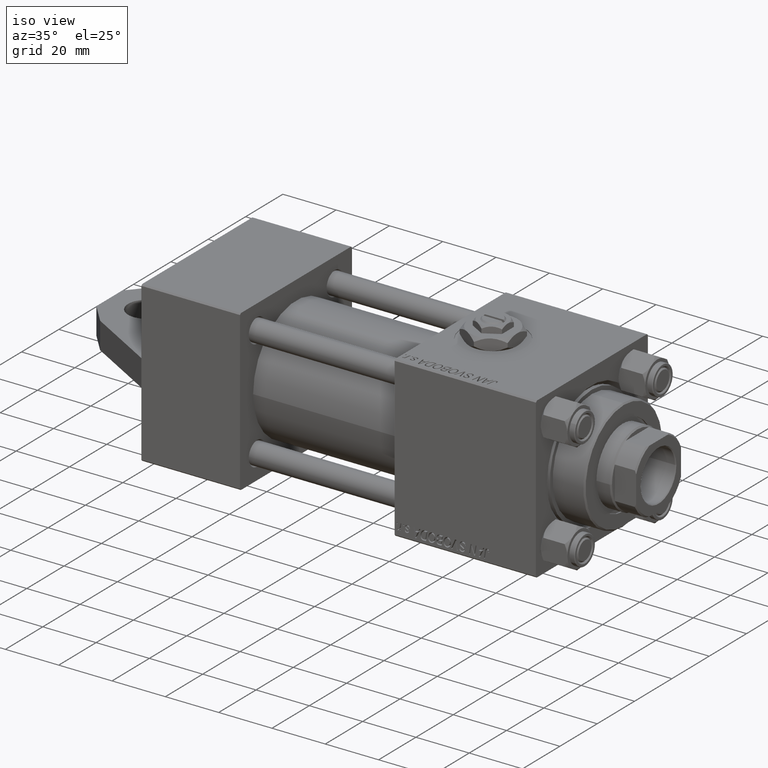
[diagram: clean part render]
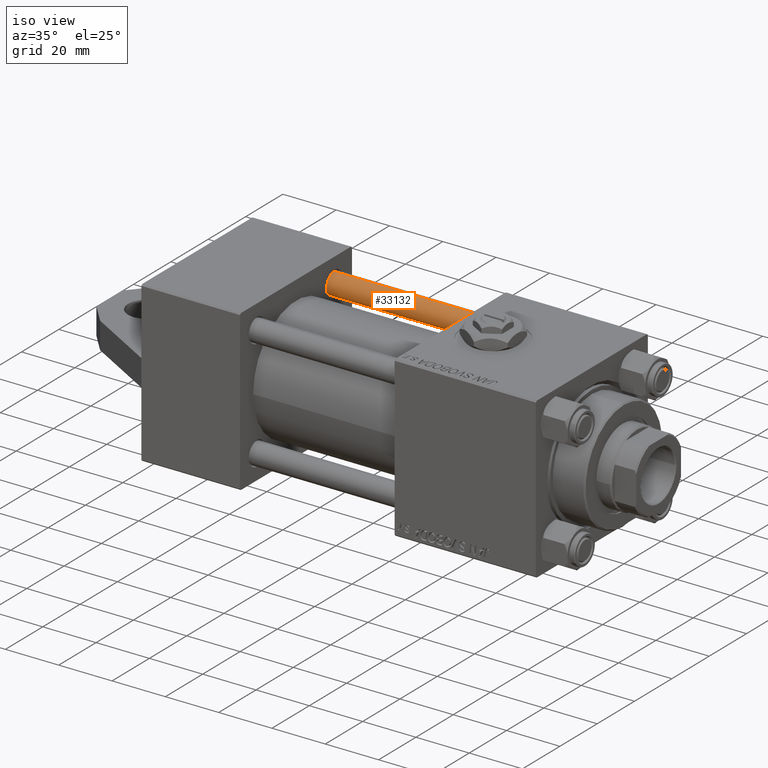
[diagram: same view with one face highlighted and labeled with its STEP entity id]
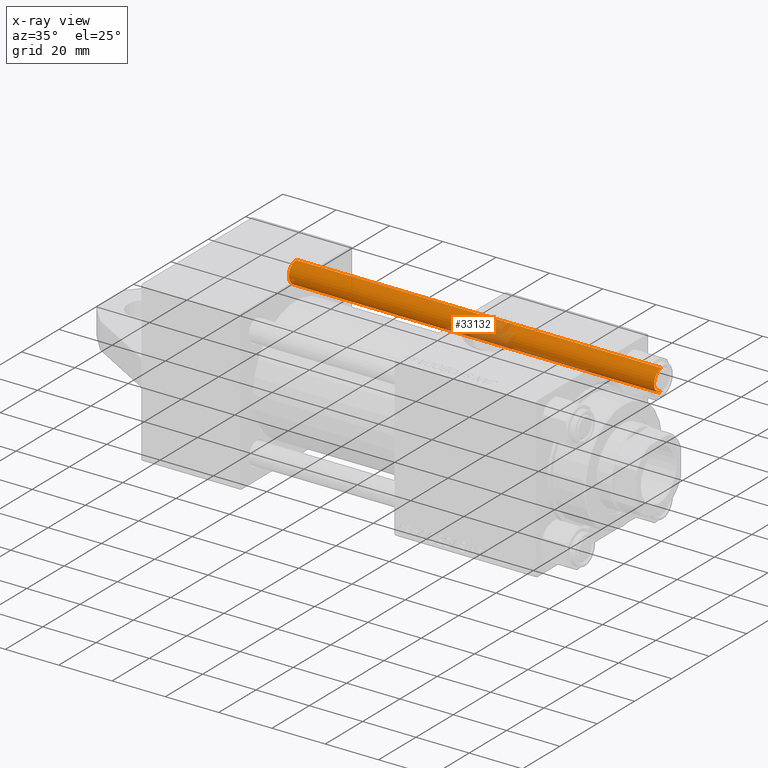
[diagram: x-ray of the same camera — body ghosted, the highlighted face saturated]
A machine part, iso view. The second image highlights one B-rep face of the part: STEP entity #33132.
The next image is the same camera in x-ray: the body ghosted, the highlighted face saturated — about 16% of this face is hidden behind the body in this view.
In plain terms, the highlighted cylindrical surface (edge-blend (fillet) strip) has radius 4 mm, axis along (-1, 0, -0).
Its self-contained STEP definition (entity closure, byte-faithful):
#440 = FACE_OUTER_BOUND ( 'NONE', #39293, .T. ) ;
#920 = VECTOR ( 'NONE', #25762, 1000.000000000000000 ) ;
#2179 = VERTEX_POINT ( 'NONE', #47071 ) ;
#3336 = CYLINDRICAL_SURFACE ( 'NONE', #13231, 4.000000000000000000 ) ;
#4573 = ORIENTED_EDGE ( 'NONE', *, *, #12768, .T. ) ;
#4586 = EDGE_CURVE ( 'NONE', #45167, #30208, #41211, .T. ) ;
#8106 = CARTESIAN_POINT ( 'NONE',  ( -4.000000000000000000, 0.000000000000000000, 138.0000000000000000 ) ) ;
#8759 = AXIS2_PLACEMENT_3D ( 'NONE', #40842, #40365, #18858 ) ;
#9083 = CARTESIAN_POINT ( 'NONE',  ( -4.000000000000000000, 0.000000000000000000, 0.5000000000000281997 ) ) ;
#10189 = CARTESIAN_POINT ( 'NONE',  ( 4.000000000000000000, 4.898587196589412829E-16, 0.5000000000000281997 ) ) ;
#10831 = CARTESIAN_POINT ( 'NONE',  ( 0.000000000000000000, 0.000000000000000000, 138.0000000000000000 ) ) ;
#12768 = EDGE_CURVE ( 'NONE', #2179, #45167, #28812, .T. ) ;
#13101 = CIRCLE ( 'NONE', #22331, 4.000000000000000000 ) ;
#13231 = AXIS2_PLACEMENT_3D ( 'NONE', #10831, #44181, #25571 ) ;
#13824 = ORIENTED_EDGE ( 'NONE', *, *, #25923, .T. ) ;
#18267 = VECTOR ( 'NONE', #42236, 1000.000000000000000 ) ;
#18719 = DIRECTION ( 'NONE',  ( -0.000000000000000000, -0.000000000000000000, 1.000000000000000000 ) ) ;
#18858 = DIRECTION ( 'NONE',  ( 1.000000000000000000, 0.000000000000000000, 0.000000000000000000 ) ) ;
#19698 = EDGE_CURVE ( 'NONE', #2179, #37437, #46805, .T. ) ;
#21033 = CARTESIAN_POINT ( 'NONE',  ( -4.000000000000000000, 0.000000000000000000, 137.5000000000000284 ) ) ;
#22331 = AXIS2_PLACEMENT_3D ( 'NONE', #47474, #18719, #29105 ) ;
#25571 = DIRECTION ( 'NONE',  ( -1.000000000000000000, 0.000000000000000000, 0.000000000000000000 ) ) ;
#25762 = DIRECTION ( 'NONE',  ( -0.000000000000000000, -0.000000000000000000, -1.000000000000000000 ) ) ;
#25923 = EDGE_CURVE ( 'NONE', #30208, #37437, #13101, .T. ) ;
#25978 = ORIENTED_EDGE ( 'NONE', *, *, #19698, .F. ) ;
#28812 = CIRCLE ( 'NONE', #8759, 4.000000000000000000 ) ;
#29105 = DIRECTION ( 'NONE',  ( 1.000000000000000000, 0.000000000000000000, 0.000000000000000000 ) ) ;
#30208 = VERTEX_POINT ( 'NONE', #9083 ) ;
#33132 = ADVANCED_FACE ( 'NONE', ( #440 ), #3336, .T. ) ;
#35232 = CARTESIAN_POINT ( 'NONE',  ( 4.000000000000000000, 4.898587196589412829E-16, 138.0000000000000000 ) ) ;
#37437 = VERTEX_POINT ( 'NONE', #10189 ) ;
#39054 = ORIENTED_EDGE ( 'NONE', *, *, #4586, .T. ) ;
#39293 = EDGE_LOOP ( 'NONE', ( #25978, #4573, #39054, #13824 ) ) ;
#40365 = DIRECTION ( 'NONE',  ( 0.000000000000000000, 0.000000000000000000, -1.000000000000000000 ) ) ;
#40842 = CARTESIAN_POINT ( 'NONE',  ( 0.000000000000000000, 0.000000000000000000, 137.5000000000000284 ) ) ;
#41211 = LINE ( 'NONE', #8106, #920 ) ;
#42236 = DIRECTION ( 'NONE',  ( -0.000000000000000000, -0.000000000000000000, -1.000000000000000000 ) ) ;
#44181 = DIRECTION ( 'NONE',  ( -0.000000000000000000, -0.000000000000000000, -1.000000000000000000 ) ) ;
#45167 = VERTEX_POINT ( 'NONE', #21033 ) ;
#46805 = LINE ( 'NONE', #35232, #18267 ) ;
#47071 = CARTESIAN_POINT ( 'NONE',  ( 4.000000000000000000, 4.898587196589412829E-16, 137.5000000000000284 ) ) ;
#47474 = CARTESIAN_POINT ( 'NONE',  ( 0.000000000000000000, 0.000000000000000000, 0.5000000000000281997 ) ) ;